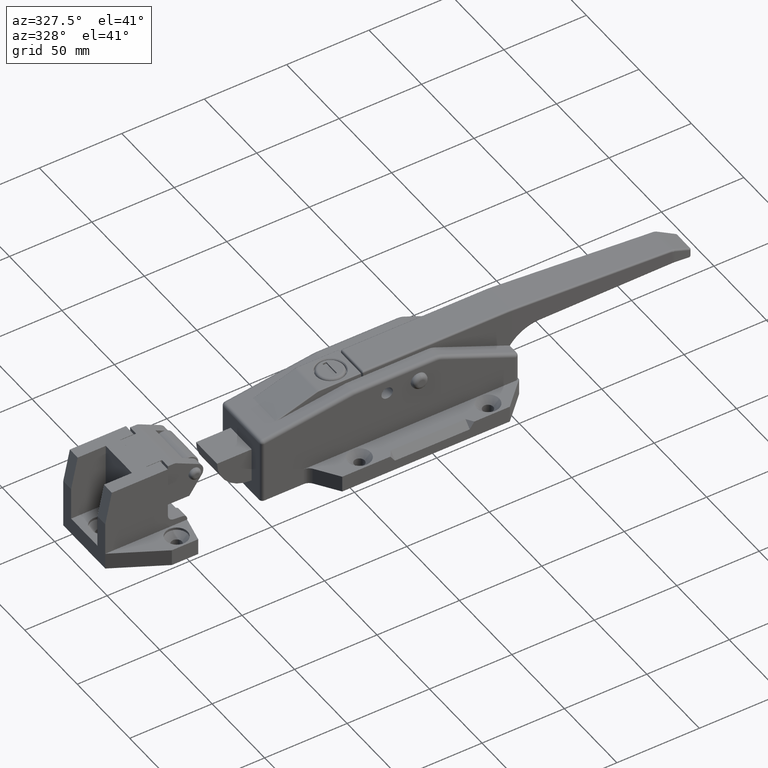
[diagram: clean part render]
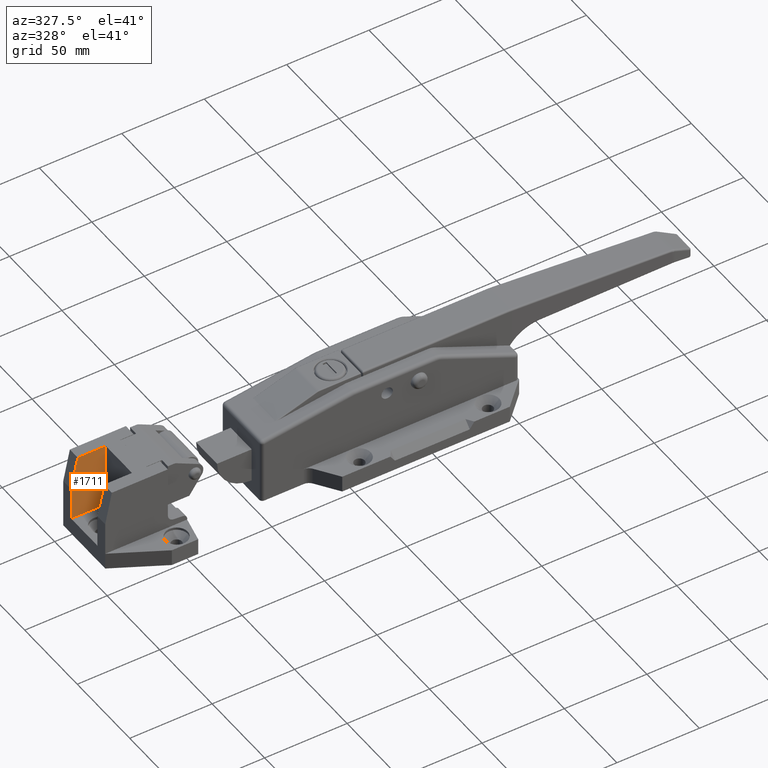
[diagram: same view with one face highlighted and labeled with its STEP entity id]
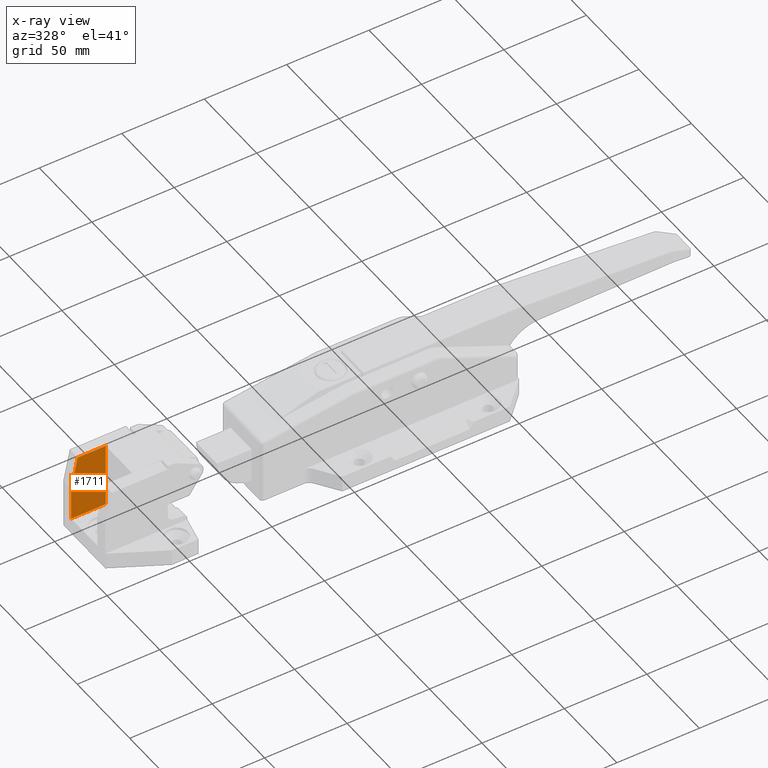
[diagram: x-ray of the same camera — body ghosted, the highlighted face saturated]
A machine part, auxiliary view. The second image highlights one B-rep face of the part: STEP entity #1711.
The next image is the same camera in x-ray: the body ghosted, the highlighted face saturated — about 2% of this face is hidden behind the body in this view.
In plain terms, the highlighted planar face has unit normal (0, 1, 0).
Its self-contained STEP definition (entity closure, byte-faithful):
#95 = VECTOR ( 'NONE', #1832, 1000.000000000000000 ) ;
#392 = DIRECTION ( 'NONE',  ( 0.2009441437213313800, -1.659916778445005400E-017, 0.9796027006414900200 ) ) ;
#447 = ORIENTED_EDGE ( 'NONE', *, *, #5855, .T. ) ;
#927 = CARTESIAN_POINT ( 'NONE',  ( 0.0000000000000000000, 12.50000000000000000, 9.999999999999786800 ) ) ;
#1063 = CARTESIAN_POINT ( 'NONE',  ( 0.0000000000000000000, 12.50000000000000000, 29.99999999999980500 ) ) ;
#1383 = LINE ( 'NONE', #7119, #7189 ) ;
#1545 = FACE_OUTER_BOUND ( 'NONE', #7784, .T. ) ;
#1711 = ADVANCED_FACE ( 'NONE', ( #1545 ), #5656, .F. ) ;
#1832 = DIRECTION ( 'NONE',  ( -0.0000000000000000000, -0.0000000000000000000, 1.000000000000000000 ) ) ;
#1856 = CARTESIAN_POINT ( 'NONE',  ( 21.00000000000001800, 12.49999999999999800, -22.64965543462915700 ) ) ;
#1897 = ORIENTED_EDGE ( 'NONE', *, *, #6289, .F. ) ;
#1908 = LINE ( 'NONE', #4535, #3435 ) ;
#2421 = AXIS2_PLACEMENT_3D ( 'NONE', #7786, #5826, #6141 ) ;
#2925 = DIRECTION ( 'NONE',  ( -1.000000000000000000, 8.260587980841938800E-017, -0.0000000000000000000 ) ) ;
#3212 = VECTOR ( 'NONE', #3795, 1000.000000000000000 ) ;
#3432 = ORIENTED_EDGE ( 'NONE', *, *, #8339, .F. ) ;
#3435 = VECTOR ( 'NONE', #392, 1000.000000000000200 ) ;
#3466 = LINE ( 'NONE', #1856, #95 ) ;
#3720 = CARTESIAN_POINT ( 'NONE',  ( 0.0000000000000000000, 12.50000000000000000, -22.64965543462915700 ) ) ;
#3795 = DIRECTION ( 'NONE',  ( -0.0000000000000000000, -0.0000000000000000000, 1.000000000000000000 ) ) ;
#4535 = CARTESIAN_POINT ( 'NONE',  ( 0.0000000000000000000, 12.50000000000000000, 29.99999999999980500 ) ) ;
#4725 = VECTOR ( 'NONE', #2925, 1000.000000000000000 ) ;
#4817 = VERTEX_POINT ( 'NONE', #5500 ) ;
#5100 = CARTESIAN_POINT ( 'NONE',  ( 21.00000000000001800, 12.49999999999999800, 9.999999999999786800 ) ) ;
#5151 = DIRECTION ( 'NONE',  ( -1.000000000000000000, 8.260587980841940000E-017, 0.0000000000000000000 ) ) ;
#5161 = EDGE_CURVE ( 'NONE', #6349, #7864, #1908, .T. ) ;
#5500 = CARTESIAN_POINT ( 'NONE',  ( 21.00000000000001800, 12.49999999999999800, 49.50000000000009900 ) ) ;
#5656 = PLANE ( 'NONE',  #2421 ) ;
#5826 = DIRECTION ( 'NONE',  ( 8.260587980841940000E-017, 1.000000000000000000, 0.0000000000000000000 ) ) ;
#5855 = EDGE_CURVE ( 'NONE', #4817, #7864, #6691, .T. ) ;
#6141 = DIRECTION ( 'NONE',  ( -1.000000000000000000, 8.260587980841940000E-017, 0.0000000000000000000 ) ) ;
#6240 = VERTEX_POINT ( 'NONE', #927 ) ;
#6289 = EDGE_CURVE ( 'NONE', #7409, #6240, #1383, .T. ) ;
#6349 = VERTEX_POINT ( 'NONE', #1063 ) ;
#6579 = EDGE_CURVE ( 'NONE', #7409, #4817, #3466, .T. ) ;
#6691 = LINE ( 'NONE', #8301, #4725 ) ;
#7119 = CARTESIAN_POINT ( 'NONE',  ( 0.0000000000000000000, 12.50000000000000000, 9.999999999999786800 ) ) ;
#7189 = VECTOR ( 'NONE', #5151, 1000.000000000000000 ) ;
#7195 = CARTESIAN_POINT ( 'NONE',  ( 4.000000000000003600, 12.50000000000000000, 49.50000000000009900 ) ) ;
#7409 = VERTEX_POINT ( 'NONE', #5100 ) ;
#7497 = ORIENTED_EDGE ( 'NONE', *, *, #5161, .F. ) ;
#7566 = ORIENTED_EDGE ( 'NONE', *, *, #6579, .T. ) ;
#7784 = EDGE_LOOP ( 'NONE', ( #3432, #1897, #7566, #447, #7497 ) ) ;
#7786 = CARTESIAN_POINT ( 'NONE',  ( 0.0000000000000000000, 12.50000000000000000, -22.64965543462915700 ) ) ;
#7864 = VERTEX_POINT ( 'NONE', #7195 ) ;
#8301 = CARTESIAN_POINT ( 'NONE',  ( 0.0000000000000000000, 12.50000000000000000, 49.50000000000009900 ) ) ;
#8339 = EDGE_CURVE ( 'NONE', #6240, #6349, #8600, .T. ) ;
#8600 = LINE ( 'NONE', #3720, #3212 ) ;